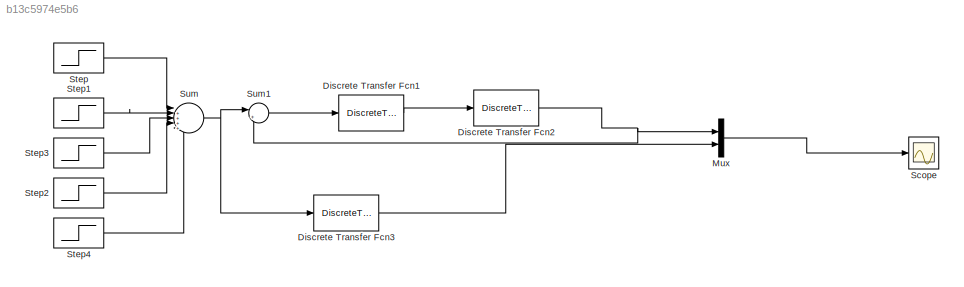
MODEL slx_b13c5974e5b6
KIND model
CONFIG AbsTol = auto
CONFIG EnableMultiTasking = off
CONFIG FixedStep = auto
CONFIG MaxStep = auto
CONFIG MinStep = auto
CONFIG RelTol = 1e-3
CONFIG SampleTimeConstraint = Unconstrained
CONFIG SolverName = VariableStepAuto
CONFIG StartTime = 0.0
CONFIG StopTime = 20
BLOCK [DiscreteTransferFcn] Discrete Transfer Fcn1
  Denominator = [denr_s]
  InputPortMap = u0
  Numerator = [numr_s]
  SampleTime = Ts
BLOCK [DiscreteTransferFcn] Discrete Transfer Fcn2
  Denominator = [den1pz]
  InputPortMap = u0
  Numerator = [num1pz]
  SampleTime = Ts
BLOCK [DiscreteTransferFcn] Discrete Transfer Fcn3
  Denominator = [den0z]
  InputPortMap = u0
  Numerator = [num0z]
  SampleTime = Ts
BLOCK [Mux] Mux
  DisplayOption = bar
  Inputs = 2
BLOCK [Scope] Scope
  Floating = off
  NumInputPorts = 1
  ScopeSpecificationString = Simulink.scopes.TimeScopeBlockCfg('CurrentConfiguration', extmgr.ConfigurationSet(extmgr.Configuration('Core','General UI',true),extmgr.Configuration('Core','Source UI',true),extmgr.Configuration('Sources','WiredSimulink',true),extmgr.Configuration('Visuals','Time Domain',true,'SerializedDisplays',{struct('MinYLimReal','-0.69937','MaxYLimReal','4.57006','YLabelReal','','MinYLimMag','0.00000','MaxY...<+1394ch>
BLOCK [Step] Step
  After = -4
  SampleTime = Ts
  Time = 16
BLOCK [Step] Step1
  SampleTime = Ts
  Time = 12
BLOCK [Step] Step2
  SampleTime = Ts
  Time = 4
BLOCK [Step] Step3
  SampleTime = Ts
  Time = 8
BLOCK [Step] Step4
  SampleTime = Ts
  Time = 0
BLOCK [Sum] Sum
  Inputs = |+++++
BLOCK [Sum] Sum1
  Inputs = |+-
LINE Discrete Transfer Fcn1:1 -> Discrete Transfer Fcn2:1
NET Discrete Transfer Fcn2:1 -> Mux:1, Sum1:2
LINE Discrete Transfer Fcn3:1 -> Mux:2
LINE Mux:1 -> Scope:1
LINE Step1:1 -> Sum:2
LINE Step2:1 -> Sum:4
LINE Step3:1 -> Sum:3
LINE Step4:1 -> Sum:5
LINE Step:1 -> Sum:1
LINE Sum1:1 -> Discrete Transfer Fcn1:1
NET Sum:1 -> Discrete Transfer Fcn3:1, Sum1:1
note: NET lines group one-source signal fan-out (src -> all destinations, sorted); 1:1 wires keep LINE
